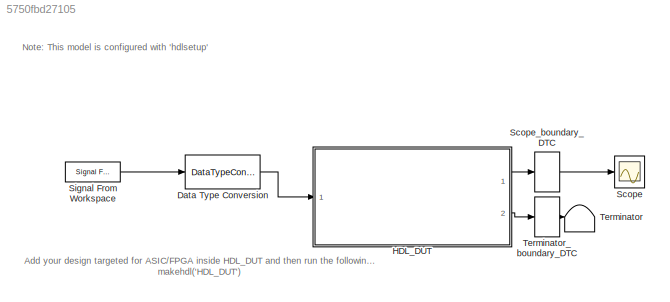
MODEL slx_5750fbd27105
KIND model
CONFIG AbsTol = auto
CONFIG EnableMultiTasking = off
CONFIG FixedStep = auto
CONFIG MaxStep = auto
CONFIG MinStep = auto
CONFIG RelTol = 1e-3
CONFIG SampleTimeConstraint = Unconstrained
CONFIG Solver = FixedStepDiscrete
CONFIG SolverName = FixedStepDiscrete
CONFIG StartTime = 0.0
CONFIG StopTime = timetorun
BLOCK [DataTypeConversion] Data Type Conversion
  OutDataTypeStr = DT_input
  RndMeth = Floor
  SaturateOnIntegerOverflow = off
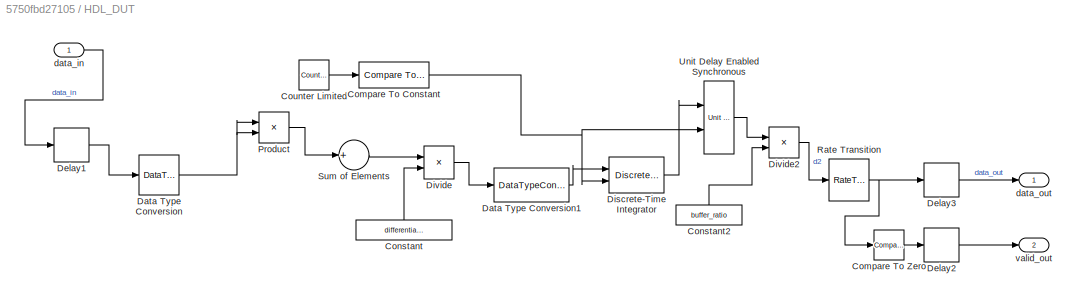
BLOCK [SubSystem] HDL_DUT
  Ports = [1, 2]
  RequestExecContextInheritance = off
  TreatAsAtomicUnit = on
BLOCK [Reference] HDL_DUT/Compare To Constant  REF=simulink/Logic and Bit
Operations/Compare
To Constant
  Ports = [1, 1]
  SourceBlock = simulink/Logic and Bit\nOperations/Compare\nTo Constant
  SourceProductBaseCode = SL
  SourceProductName = Simulink
  SourceType = Compare To Constant
BLOCK [Reference] HDL_DUT/Compare To Zero  REF=simulink/Logic and Bit
Operations/Compare
To Zero
  Ports = [1, 1]
  SourceBlock = simulink/Logic and Bit\nOperations/Compare\nTo Zero
  SourceProductBaseCode = SL
  SourceProductName = Simulink
  SourceType = Compare To Zero
BLOCK [Constant] HDL_DUT/Constant
  OutDataTypeStr = uint16
  SampleTime = -1
  Value = differential_pairs
BLOCK [Constant] HDL_DUT/Constant2
  OutDataTypeStr = uint16
  SampleTime = -1
  Value = buffer_ratio
BLOCK [Reference] HDL_DUT/Counter Limited  REF=simulink/Sources/Counter
Limited
  Ports = [0, 1]
  SourceBlock = simulink/Sources/Counter\nLimited
  SourceProductBaseCode = SL
  SourceProductName = Simulink
  SourceType = Counter Limited
BLOCK [DataTypeConversion] HDL_DUT/Data Type Conversion
  OutDataTypeStr = fixdt(1,18,16)
  RndMeth = Nearest
  SaturateOnIntegerOverflow = off
BLOCK [DataTypeConversion] HDL_DUT/Data Type Conversion1
  OutDataTypeStr = fixdt(1,48,32)
  RndMeth = Floor
  SaturateOnIntegerOverflow = off
BLOCK [Delay] HDL_DUT/Delay1
  DelayLength = 1
  InputPortMap = u0
  InputProcessing = Columns as channels (frame based)
  Ports = [1, 1]
BLOCK [Delay] HDL_DUT/Delay2
  DelayLength = 1
  InputPortMap = u0
  Ports = [1, 1]
BLOCK [Delay] HDL_DUT/Delay3
  DelayLength = 1
  InputPortMap = u0
  Ports = [1, 1]
BLOCK [DiscreteIntegrator] HDL_DUT/Discrete-Time Integrator
  ExternalReset = falling
  ICPrevOutput = DiscIntNeverNeededParam
  ICPrevScaledInput = DiscIntNeverNeededParam
  InitialConditionSetting = Auto
  IntegratorMethod = Accumulation: Forward Euler
  LimitOutput = on
  LowerSaturationLimit = 0
  Ports = [2, 1]
  SampleTime = -1
  UpperSaturationLimit = 1023
  gainval = 1
BLOCK [Product] HDL_DUT/Divide
  InputSameDT = off
  Inputs = */
  OutDataTypeStr = Inherit: Inherit via internal rule
  Ports = [2, 1]
BLOCK [Product] HDL_DUT/Divide2
  InputSameDT = off
  Inputs = */
  OutDataTypeStr = Inherit: Inherit via internal rule
  Ports = [2, 1]
  RndMeth = Simplest
BLOCK [Product] HDL_DUT/Product
  InputSameDT = off
  OutDataTypeStr = Inherit: Inherit via internal rule
  Ports = [2, 1]
  RndMeth = Floor
  SaturateOnIntegerOverflow = off
BLOCK [RateTransition] HDL_DUT/Rate Transition
  OutPortSampleTime = average_duration
  OutPortSampleTimeMultiple = buffer_ratio
  OutPortSampleTimeOpt = Multiple of input port sample time
BLOCK [Sum] HDL_DUT/Sum of Elements
  InputSameDT = off
  Inputs = +
  OutDataTypeStr = Inherit: Inherit via internal rule
  Ports = [1, 1]
  SaturateOnIntegerOverflow = off
BLOCK [Reference] HDL_DUT/Unit Delay Enabled Synchronous  REF=hdlsllib/Discrete/Unit Delay Enabled
Synchronous
  Ports = [2, 1]
  SourceBlock = hdlsllib/Discrete/Unit Delay Enabled\nSynchronous
  SourceProductBaseCode = SL
  SourceProductName = Simulink
  SourceType = Unit Delay Enabled Synchronous
BLOCK [Inport] HDL_DUT/data_in
  IconDisplay = Port number
BLOCK [Outport] HDL_DUT/data_out
  IconDisplay = Port number
  VectorParamsAs1DForOutWhenUnconnected = off
BLOCK [Outport] HDL_DUT/valid_out
  IconDisplay = Port number
  Port = 2
  VectorParamsAs1DForOutWhenUnconnected = off
BLOCK [Scope] Scope
  Floating = off
  NumInputPorts = 1
  Ports = [1]
  ScopeSpecificationString = Simulink.scopes.TimeScopeBlockCfg('CurrentConfiguration', extmgr.ConfigurationSet(extmgr.Configuration('Core','General UI',true),extmgr.Configuration('Core','Source UI',true),extmgr.Configuration('Sources','WiredSimulink',true,'DataLoggingSaveFormat','Array','DataLoggingLimitDataPoints',true,'DataLoggingDecimation','1'),extmgr.Configuration('Visuals','Time Domain',true,'SerializedDisplays',{struct...<+1677ch>
BLOCK [DataTypeConversion] Scope_boundary_DTC
BLOCK [Reference] Signal From Workspace  REF=dspsrcs4/Signal From
Workspace
  Ports = [0, 1]
  SourceBlock = dspsrcs4/Signal From\nWorkspace
  SourceProductBaseCode = DS
  SourceProductName = DSP System Toolbox
  SourceType = Signal From Workspace
BLOCK [Terminator] Terminator
BLOCK [DataTypeConversion] Terminator_boundary_DTC
ANNOTATION (root): Add your design targeted for ASIC/FPGA inside HDL_DUT and then run the following command: makehdl('HDL_DUT')
ANNOTATION (root): Note: This model is configured with ' hdlsetup '
LINE Data Type Conversion:1 -> HDL_DUT:1
NET HDL_DUT/Compare To Constant:1 -> HDL_DUT/Discrete-Time Integrator:2, HDL_DUT/Unit Delay Enabled Synchronous:2
LINE HDL_DUT/Compare To Zero:1 -> HDL_DUT/Delay2:1
LINE HDL_DUT/Constant2:1 -> HDL_DUT/Divide2:2
LINE HDL_DUT/Constant:1 -> HDL_DUT/Divide:2
LINE HDL_DUT/Counter Limited:1 -> HDL_DUT/Compare To Constant:1
LINE HDL_DUT/Data Type Conversion1:1 -> HDL_DUT/Discrete-Time Integrator:1
NET HDL_DUT/Data Type Conversion:1 -> HDL_DUT/Product:1, HDL_DUT/Product:2
LINE HDL_DUT/Delay1:1 -> HDL_DUT/Data Type Conversion:1
LINE HDL_DUT/Delay2:1 -> HDL_DUT/valid_out:1
LINE HDL_DUT/Delay3:1 -> HDL_DUT/data_out:1
LINE HDL_DUT/Discrete-Time Integrator:1 -> HDL_DUT/Unit Delay Enabled Synchronous:1
LINE HDL_DUT/Divide2:1 -> HDL_DUT/Rate Transition:1
LINE HDL_DUT/Divide:1 -> HDL_DUT/Data Type Conversion1:1
LINE HDL_DUT/Product:1 -> HDL_DUT/Sum of Elements:1
NET HDL_DUT/Rate Transition:1 -> HDL_DUT/Compare To Zero:1, HDL_DUT/Delay3:1
LINE HDL_DUT/Sum of Elements:1 -> HDL_DUT/Divide:1
LINE HDL_DUT/Unit Delay Enabled Synchronous:1 -> HDL_DUT/Divide2:1
LINE HDL_DUT/data_in:1 -> HDL_DUT/Delay1:1
LINE HDL_DUT:1 -> Scope_boundary_DTC:1
LINE HDL_DUT:2 -> Terminator_boundary_DTC:1
LINE Scope_boundary_DTC:1 -> Scope:1
LINE Signal From Workspace:1 -> Data Type Conversion:1
LINE Terminator_boundary_DTC:1 -> Terminator:1
note: NET lines group one-source signal fan-out (src -> all destinations, sorted); 1:1 wires keep LINE
